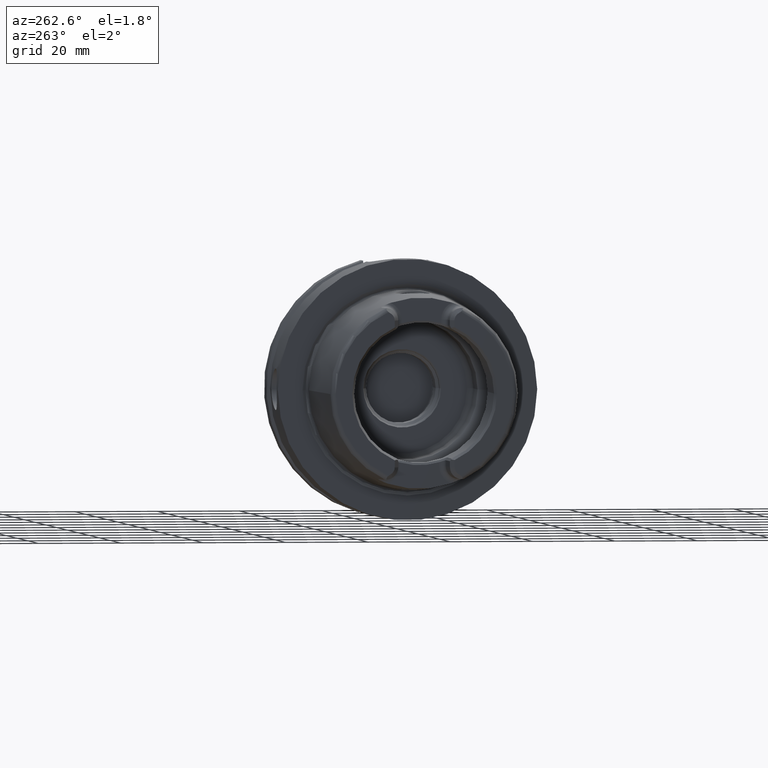
[diagram: clean part render]
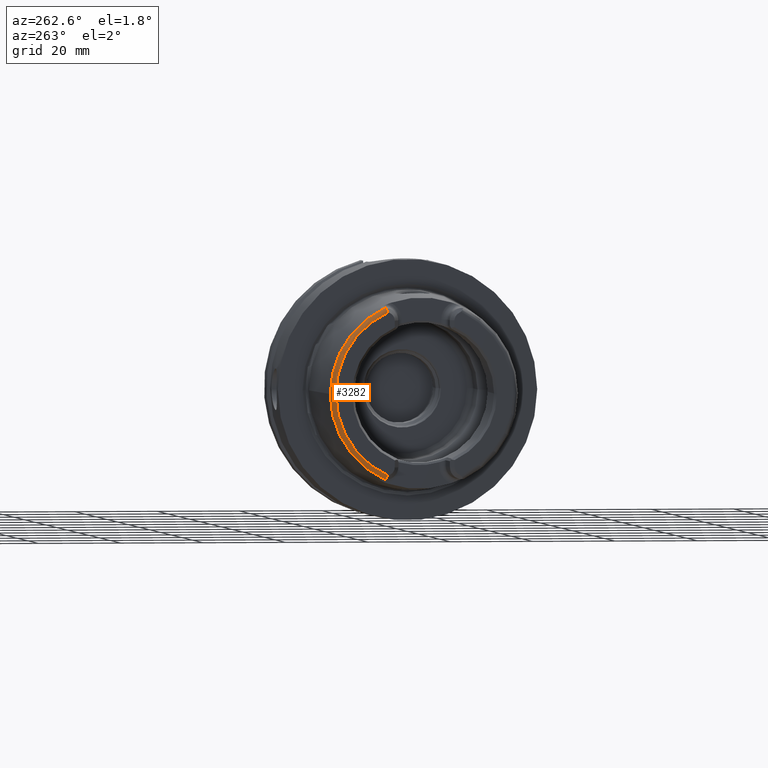
[diagram: same view with one face highlighted and labeled with its STEP entity id]
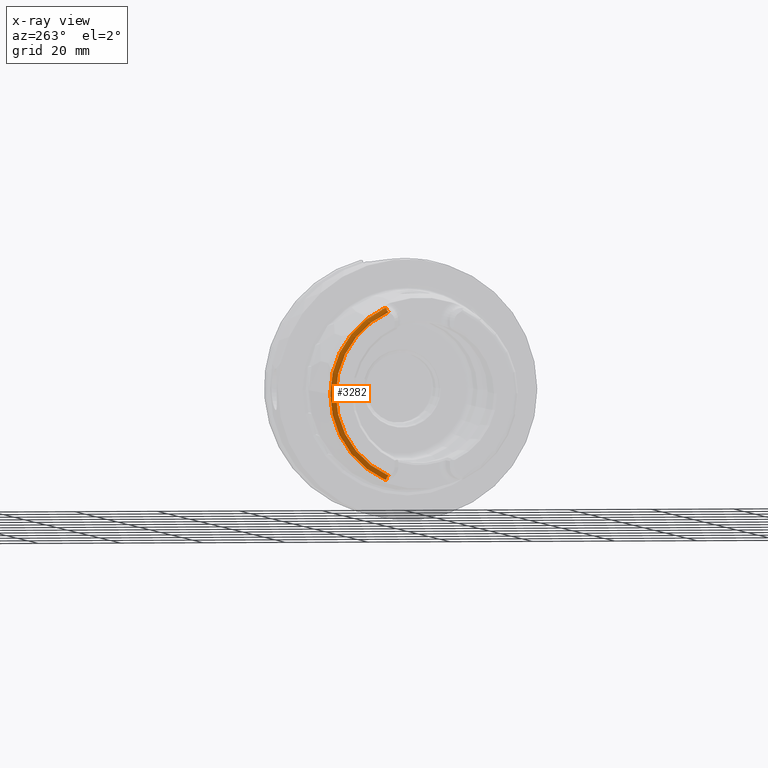
[diagram: x-ray of the same camera — body ghosted, the highlighted face saturated]
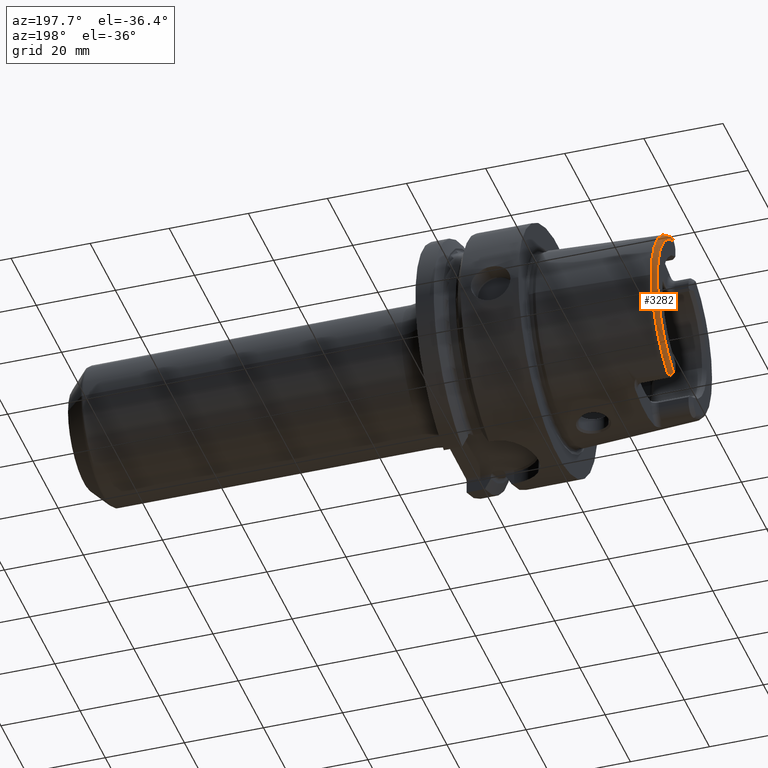
[diagram: same view with one face highlighted and labeled with its STEP entity id]
A machine part, auxiliary view. The second image highlights one B-rep face of the part: STEP entity #3282.
The next image is the same camera in x-ray: the body ghosted, the highlighted face saturated — about 0% of this face is hidden behind the body in this view.
A second angle (auxiliary view) of the same face is appended — the face is thin or edge-on in the first view.
In plain terms, the highlighted toroidal blend (fillet) surface has major radius 21.5761 mm and minor (blend) radius 1.2 mm.
Its self-contained STEP definition (entity closure, byte-faithful):
#155=CARTESIAN_POINT('',(-3.142329832300E1,9.147789680232E0,-2.066750973939E1));
#156=CARTESIAN_POINT('',(-3.146785463680E1,9.169327161481E0,-2.062835928028E1));
#157=CARTESIAN_POINT('',(-3.155487993536E1,9.203474960428E0,-2.054672249220E1));
#158=CARTESIAN_POINT('',(-3.168154941819E1,9.224273580731E0,-2.040902349895E1));
#159=CARTESIAN_POINT('',(-3.179638971845E1,9.206079697358E0,-2.025999286960E1));
#160=CARTESIAN_POINT('',(-3.189041365611E1,9.144200972137E0,-2.010730009138E1));
#161=CARTESIAN_POINT('',(-3.195659880516E1,9.041253650427E0,-1.996104010677E1));
#162=CARTESIAN_POINT('',(-3.199307626724E1,8.906850532423E0,-1.982972129493E1));
#163=CARTESIAN_POINT('',(-3.2E1,8.806197293584E0,-1.975573388857E1));
#164=CARTESIAN_POINT('',(-3.2E1,8.752868121732E0,-1.972091419616E1));
#166=CARTESIAN_POINT('',(-3.132832518959E1,9.27E0,-2.067E1));
#167=CARTESIAN_POINT('',(-3.134450759901E1,9.250608646179E0,-2.067E1));
#168=CARTESIAN_POINT('',(-3.137648814066E1,9.210816796832E0,-2.066962390252E1));
#169=CARTESIAN_POINT('',(-3.140779600340E1,9.169107457374E0,-2.066837887831E1));
#170=CARTESIAN_POINT('',(-3.142329832300E1,9.147789680232E0,-2.066750973939E1));
#172=CARTESIAN_POINT('',(-3.086004306431E1,9.562027931336E0,-2.067E1));
#173=CARTESIAN_POINT('',(-3.089908117982E1,9.557369764332E0,-2.067E1));
#174=CARTESIAN_POINT('',(-3.097780815735E1,9.539070199208E0,-2.067E1));
#175=CARTESIAN_POINT('',(-3.110050491135E1,9.479694699778E0,-2.067E1));
#176=CARTESIAN_POINT('',(-3.121836320761E1,9.390392333018E0,-2.067E1));
#177=CARTESIAN_POINT('',(-3.129230837722E1,9.313158885277E0,-2.067E1));
#178=CARTESIAN_POINT('',(-3.132832518959E1,9.27E0,-2.067E1));
#180=CARTESIAN_POINT('',(-3.086004306431E1,0.E0,0.E0));
#181=DIRECTION('',(-1.E0,0.E0,0.E0));
#182=DIRECTION('',(0.E0,1.E0,0.E0));
#183=AXIS2_PLACEMENT_3D('',#180,#181,#182);
#185=CARTESIAN_POINT('',(-3.086004306431E1,0.E0,0.E0));
#186=DIRECTION('',(1.E0,0.E0,0.E0));
#187=DIRECTION('',(0.E0,1.E0,0.E0));
#188=AXIS2_PLACEMENT_3D('',#185,#186,#187);
#190=CARTESIAN_POINT('',(-3.132832518959E1,9.27E0,2.067E1));
#191=CARTESIAN_POINT('',(-3.129225458868E1,9.313223339992E0,2.067E1));
#192=CARTESIAN_POINT('',(-3.121820569130E1,9.390519030682E0,2.067E1));
#193=CARTESIAN_POINT('',(-3.110062643974E1,9.479612323317E0,2.067E1));
#194=CARTESIAN_POINT('',(-3.097775607391E1,9.539101836846E0,2.067E1));
#195=CARTESIAN_POINT('',(-3.089906305674E1,9.557371926843E0,2.067E1));
#196=CARTESIAN_POINT('',(-3.086004306431E1,9.562027931336E0,2.067E1));
#198=CARTESIAN_POINT('',(-3.142329832300E1,9.147789680232E0,2.066750973939E1));
#199=CARTESIAN_POINT('',(-3.140773724452E1,9.169188258734E0,2.066838217263E1));
#200=CARTESIAN_POINT('',(-3.137636553203E1,9.210974971125E0,2.066962696388E1));
#201=CARTESIAN_POINT('',(-3.134444355624E1,9.250685388521E0,2.067E1));
#202=CARTESIAN_POINT('',(-3.132832518959E1,9.27E0,2.067E1));
#204=CARTESIAN_POINT('',(-3.2E1,8.752868121732E0,1.972091419616E1));
#205=CARTESIAN_POINT('',(-3.2E1,8.806191392107E0,1.975573003538E1));
#206=CARTESIAN_POINT('',(-3.199307728065E1,8.906838058357E0,1.982971194007E1));
#207=CARTESIAN_POINT('',(-3.195660462370E1,9.041248816786E0,1.996103000182E1));
#208=CARTESIAN_POINT('',(-3.189040233195E1,9.144202826203E0,2.010731482616E1));
#209=CARTESIAN_POINT('',(-3.179646342749E1,9.206041881340E0,2.025988014952E1));
#210=CARTESIAN_POINT('',(-3.168160529070E1,9.224292971301E0,2.040896943202E1));
#211=CARTESIAN_POINT('',(-3.155472601909E1,9.203436757989E0,2.054688136818E1));
#212=CARTESIAN_POINT('',(-3.146778482605E1,9.169293416595E0,2.062842062115E1));
#213=CARTESIAN_POINT('',(-3.142329832300E1,9.147789680232E0,2.066750973939E1));
#215=CARTESIAN_POINT('',(-3.2E1,0.E0,0.E0));
#216=DIRECTION('',(-1.E0,0.E0,0.E0));
#217=DIRECTION('',(0.E0,4.056746540583E-1,9.140175463604E-1));
#218=AXIS2_PLACEMENT_3D('',#215,#216,#217);
#2674=CARTESIAN_POINT('',(-3.086004306431E1,2.277457525750E1,0.E0));
#2675=VERTEX_POINT('',#2674);
#2714=VERTEX_POINT('',#190);
#2715=VERTEX_POINT('',#196);
#2747=CARTESIAN_POINT('',(-3.2E1,8.752868121732E0,1.972091419616E1));
#2748=VERTEX_POINT('',#2747);
#2749=VERTEX_POINT('',#213);
#2795=VERTEX_POINT('',#172);
#2796=VERTEX_POINT('',#178);
#2843=CARTESIAN_POINT('',(-3.2E1,8.752868121732E0,-1.972091419616E1));
#2844=VERTEX_POINT('',#2843);
#2845=VERTEX_POINT('',#155);
#3258=CARTESIAN_POINT('',(-3.08E1,0.E0,0.E0));
#3259=DIRECTION('',(1.E0,0.E0,0.E0));
#3260=DIRECTION('',(0.E0,-1.E0,0.E0));
#3261=AXIS2_PLACEMENT_3D('',#3258,#3259,#3260);
#3262=TOROIDAL_SURFACE('',#3261,2.157607835286E1,1.2E0);
#3264=ORIENTED_EDGE('',*,*,#3263,.F.);
#3266=ORIENTED_EDGE('',*,*,#3265,.F.);
#3268=ORIENTED_EDGE('',*,*,#3267,.F.);
#3270=ORIENTED_EDGE('',*,*,#3269,.F.);
#3271=ORIENTED_EDGE('',*,*,#3149,.T.);
#3273=ORIENTED_EDGE('',*,*,#3272,.F.);
#3275=ORIENTED_EDGE('',*,*,#3274,.F.);
#3277=ORIENTED_EDGE('',*,*,#3276,.F.);
#3279=ORIENTED_EDGE('',*,*,#3278,.T.);
#3280=EDGE_LOOP('',(#3264,#3266,#3268,#3270,#3271,#3273,#3275,#3277,#3279));
#3281=FACE_OUTER_BOUND('',#3280,.F.);
#3282=ADVANCED_FACE('',(#3281),#3262,.T.);
#165=B_SPLINE_CURVE_WITH_KNOTS('',3,(#155,#156,#157,#158,#159,#160,#161,#162,
#163,#164),.UNSPECIFIED.,.F.,.F.,(4,1,1,1,1,1,1,4),(0.E0,1.428571428571E-1,
2.857142857143E-1,4.285714285714E-1,5.714285714286E-1,7.142857142857E-1,
8.571428571429E-1,1.E0),.UNSPECIFIED.);
#171=B_SPLINE_CURVE_WITH_KNOTS('',3,(#166,#167,#168,#169,#170),.UNSPECIFIED.,
.F.,.F.,(4,1,4),(0.E0,5.E-1,1.E0),.UNSPECIFIED.);
#179=B_SPLINE_CURVE_WITH_KNOTS('',3,(#172,#173,#174,#175,#176,#177,#178),
.UNSPECIFIED.,.F.,.F.,(4,1,1,1,4),(0.E0,2.5E-1,5.E-1,7.5E-1,1.E0),
.UNSPECIFIED.);
#184=CIRCLE('',#183,2.277457525750E1);
#189=CIRCLE('',#188,2.277457525750E1);
#197=B_SPLINE_CURVE_WITH_KNOTS('',3,(#190,#191,#192,#193,#194,#195,#196),
.UNSPECIFIED.,.F.,.F.,(4,1,1,1,4),(0.E0,2.5E-1,5.E-1,7.5E-1,1.E0),
.UNSPECIFIED.);
#203=B_SPLINE_CURVE_WITH_KNOTS('',3,(#198,#199,#200,#201,#202),.UNSPECIFIED.,
.F.,.F.,(4,1,4),(0.E0,5.E-1,1.E0),.UNSPECIFIED.);
#214=B_SPLINE_CURVE_WITH_KNOTS('',3,(#204,#205,#206,#207,#208,#209,#210,#211,
#212,#213),.UNSPECIFIED.,.F.,.F.,(4,1,1,1,1,1,1,4),(0.E0,1.428571428571E-1,
2.857142857143E-1,4.285714285714E-1,5.714285714286E-1,7.142857142857E-1,
8.571428571429E-1,1.E0),.UNSPECIFIED.);
#219=CIRCLE('',#218,2.157607835286E1);
#3149=EDGE_CURVE('',#2675,#2715,#189,.T.);
#3263=EDGE_CURVE('',#2845,#2844,#165,.T.);
#3265=EDGE_CURVE('',#2796,#2845,#171,.T.);
#3267=EDGE_CURVE('',#2795,#2796,#179,.T.);
#3269=EDGE_CURVE('',#2675,#2795,#184,.T.);
#3272=EDGE_CURVE('',#2714,#2715,#197,.T.);
#3274=EDGE_CURVE('',#2749,#2714,#203,.T.);
#3276=EDGE_CURVE('',#2748,#2749,#214,.T.);
#3278=EDGE_CURVE('',#2748,#2844,#219,.T.);